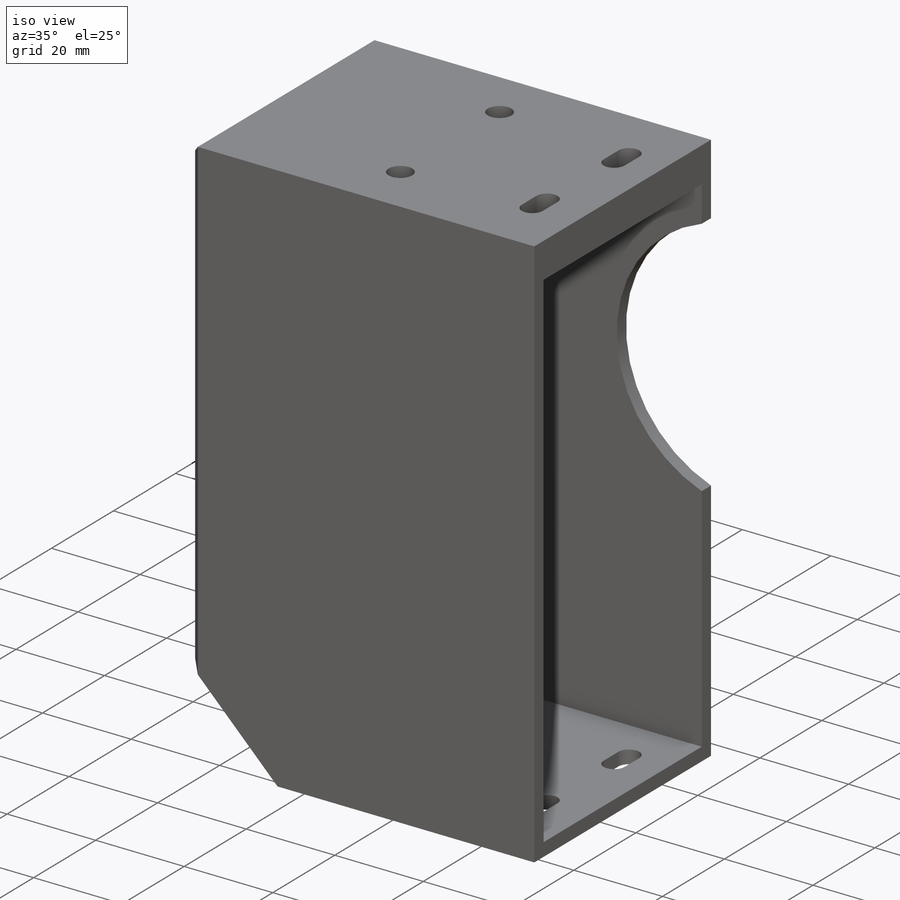
[diagram: iso view]
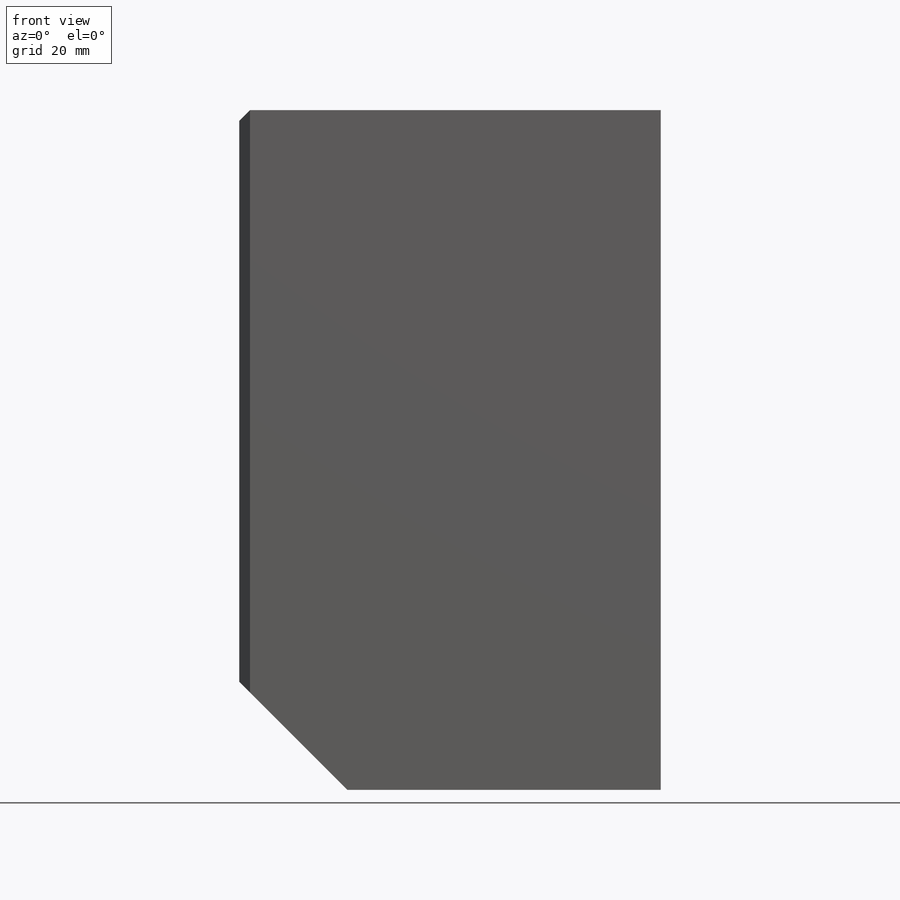
[diagram: front view]
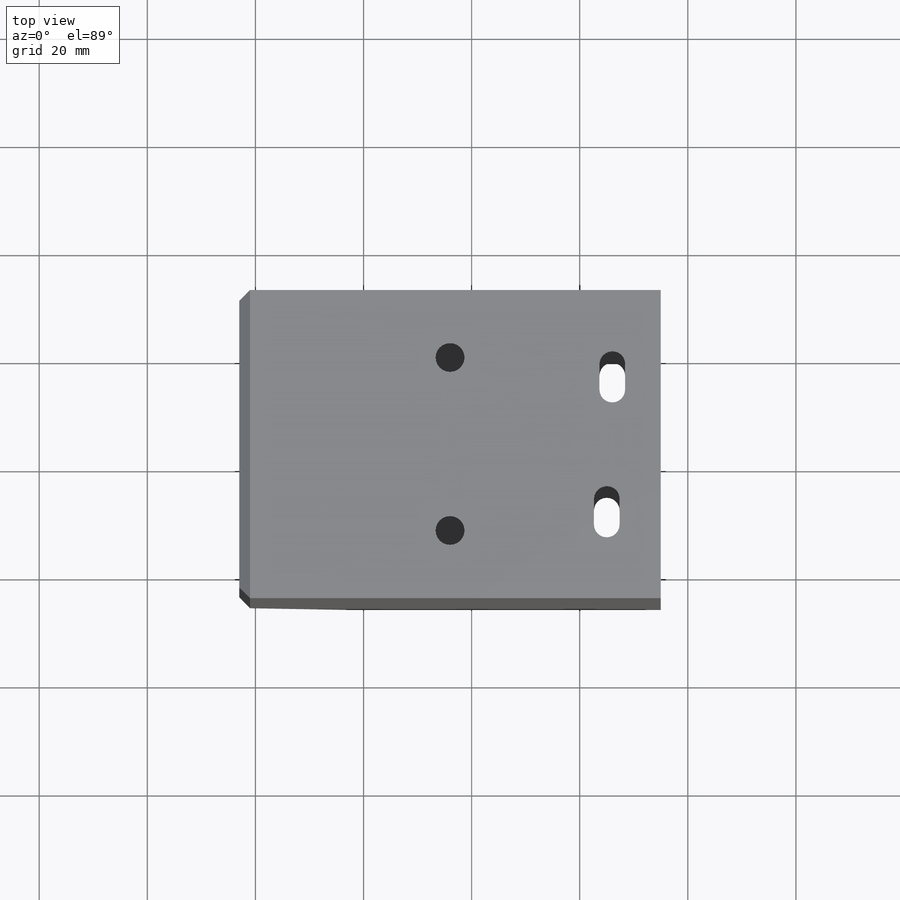
[diagram: top view]
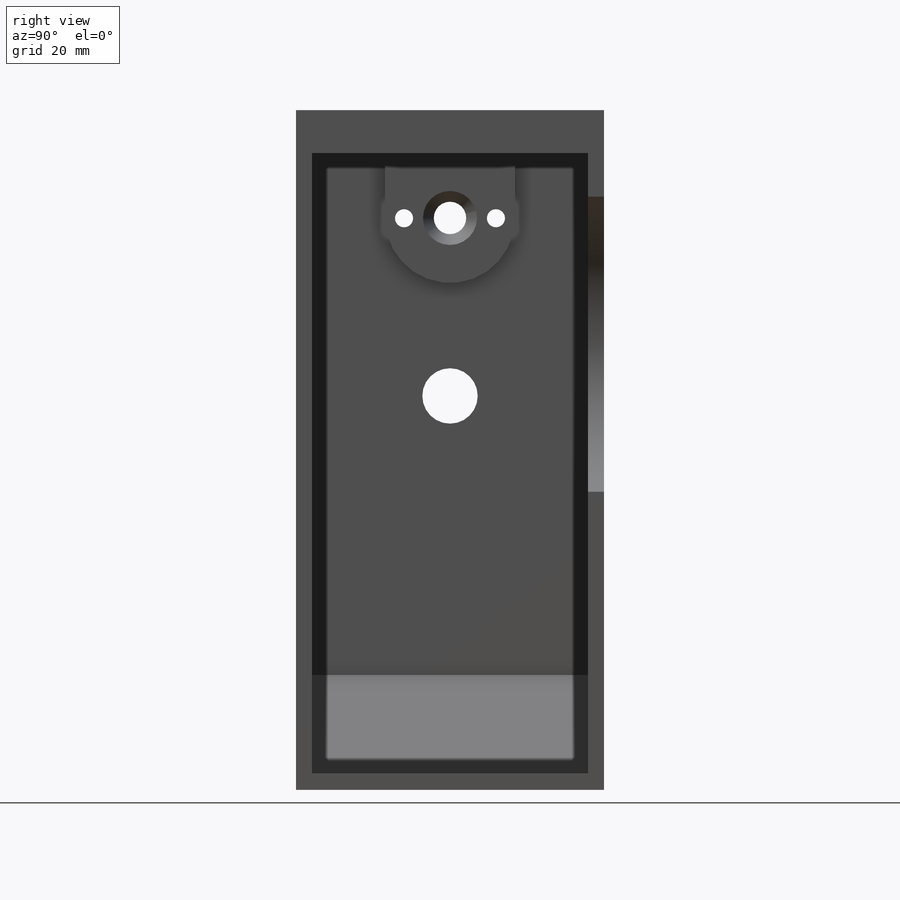
[diagram: right view]
SOLIDWORKS PART (.sldprt)
format: sldprt  version: not decoded by parser v0  size: 721,408 bytes
history: native  units: mm
features: sketch x14, cut_extrude x9, extrude x5, chamfer x2, material x1, fillet x1 (+16 scaffold rows collapsed)
feature tree (48):
  scaffold x16  (default folders/planes/origin — collapsed)
  material  "Material <not specified>"
  sketch  "Sketch2"  dims[D1=51.0mm D2=114.75mm D3=3.0mm]
  extrude  "Boss-Extrude1"  Depth=75mm
  sketch  "Sketch3"
  extrude  "Boss-Extrude2"  Depth=3mm
  sketch  "Sketch4"
  extrude  "Boss-Extrude3"  Depth=5mm
  sketch  "Sketch6"  dims[D1=5.35mm D2=12.5mm D3=18.5mm]
  cut_extrude  "Cut-Extrude2"  Depth=10mm
  sketch  "Sketch8"  dims[D1=20.0mm D2=20.0mm]
  cut_extrude  "Cut-Extrude3"  [1 undecoded]
  sketch  "Sketch9"  dims[D1=3.0mm]
  extrude  "Boss-Extrude4"  [1 undecoded]
  sketch  "Sketch15"  dims[D1=2.375mm D2=25.0mm D3=10.0mm D4=16.0mm D5=4.75mm]
  cut_extrude  "Cut-Extrude7"  [1 undecoded]
  sketch  "Sketch20"  dims[D2=24.0mm D1=12.0mm D3=28.5mm D4=57.0mm]
  extrude  "Boss-Extrude8"  Depth=5mm
  sketch  "Sketch21"  dims[D1=6.0mm]
  cut_extrude  "Cut-Extrude11"  Depth=1094mm
  chamfer  "Chamfer2"  Distance=2mm Angle=73.5deg
  sketch  "Sketch22"  dims[c1.D1=3.35mm c1.D2=17.0mm c1.D3=7.5mm c1.D4=~5.880758mm c2.D3=4.5mm c2.D4=~8.485429mm c3.D3=8.5mm]
  cut_extrude  "Cut-Extrude12"  Depth=1094mm
  sketch  "Sketch24"  dims[D1=8.35mm]
  cut_extrude  "Cut-Extrude13"  Depth=5mm
  sketch  "Sketch25"  dims[D1=10.25mm]
  cut_extrude  "Cut-Extrude14"  [1 undecoded]
  chamfer  "Chamfer3"  Distance=2mm Angle=45deg
  fillet  "Fillet1"  Radius=2mm
  sketch  "Sketch27"  dims[D1=6.0mm D2=6.0mm]
  cut_extrude  "Cut-Extrude15"  Depth=3mm
  sketch  "Sketch28"  dims[c1.D1=29.0mm c1.D4=29.0mm c1.D2=16.0mm c1.D3=7.5mm c2.D2=16.0mm c2.D3=9.8mm]
  cut_extrude  "Cut-Extrude16"  Depth=10mm
decode coverage: 25 of 31 modeling features carry decoded parameters
note: ~ marks probable driven/reference dimensions
note: 4 parameter values undecoded
summary: no parameter record found for 4 features
note: suppression state not decoded; provenance and decode notes live in map.json
